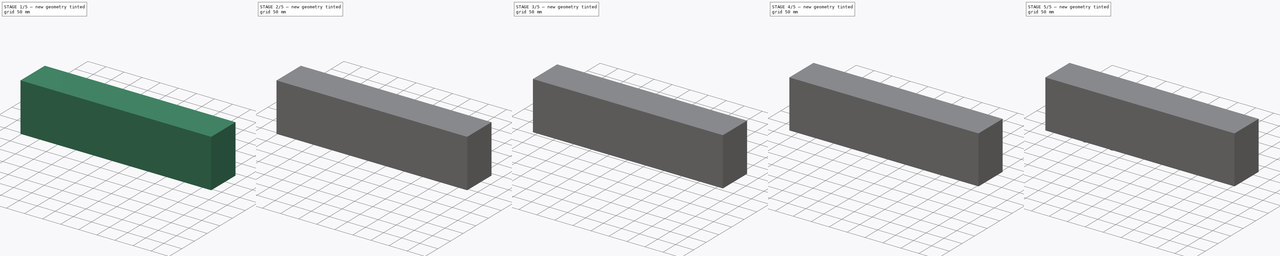
[diagram: build sequence overview — one tinted view per stage of 5, left to right]
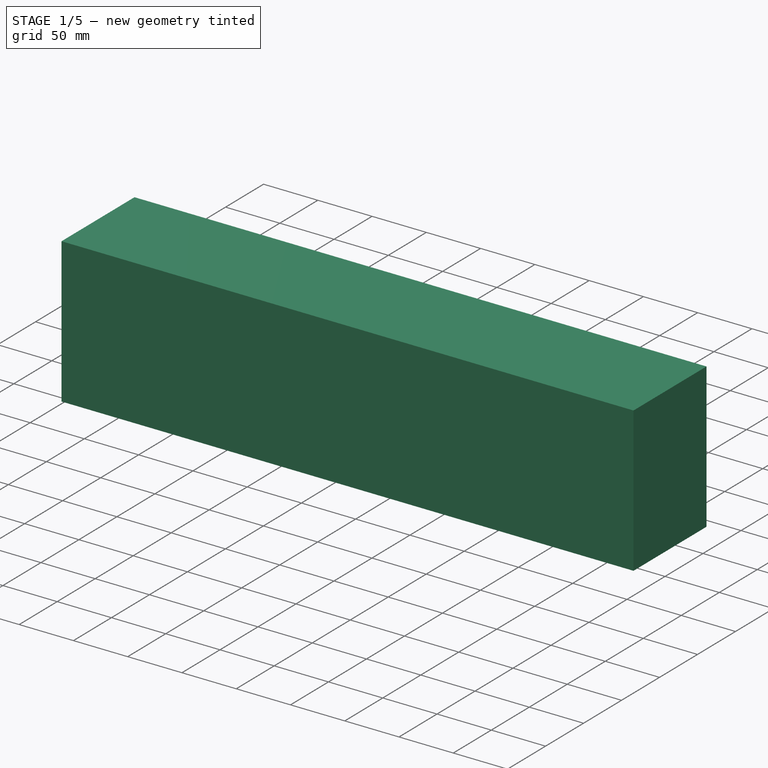
[diagram: stage 1 of 5 — iso view after this stage's code; geometry added in this stage tinted green]
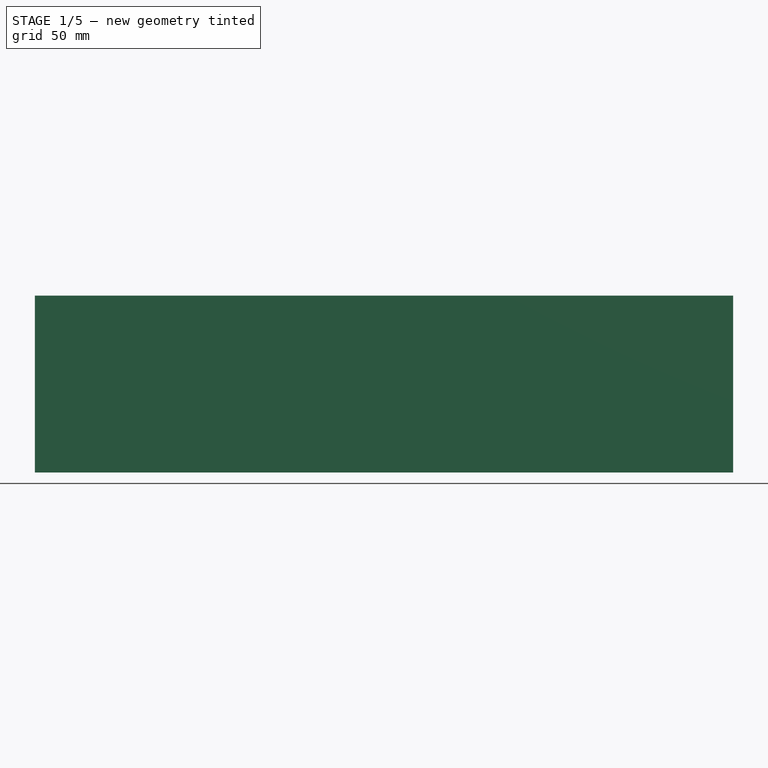
[diagram: stage 1 of 5 — front view after this stage's code; geometry added in this stage tinted green]
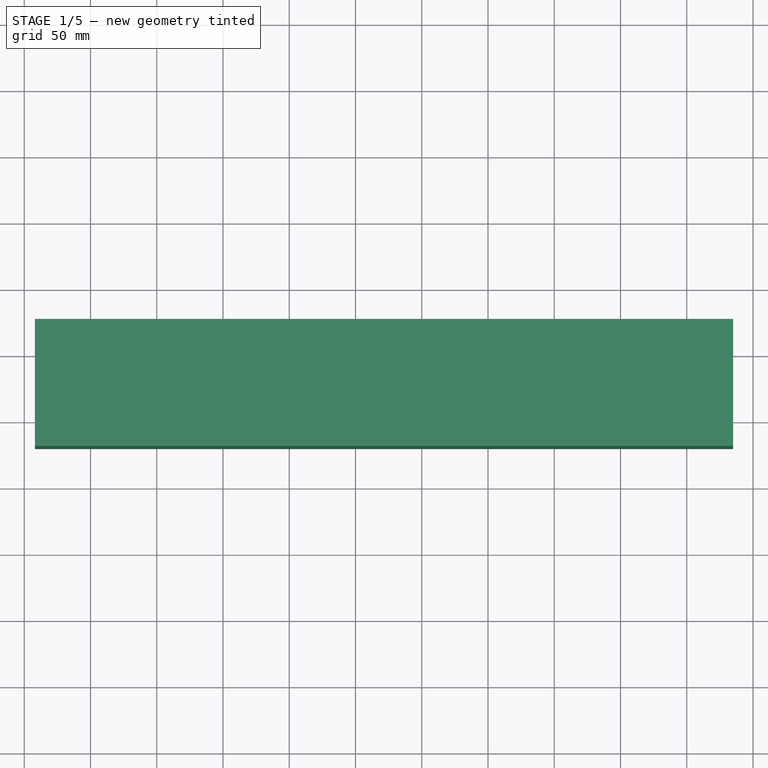
[diagram: stage 1 of 5 — top view after this stage's code; geometry added in this stage tinted green]
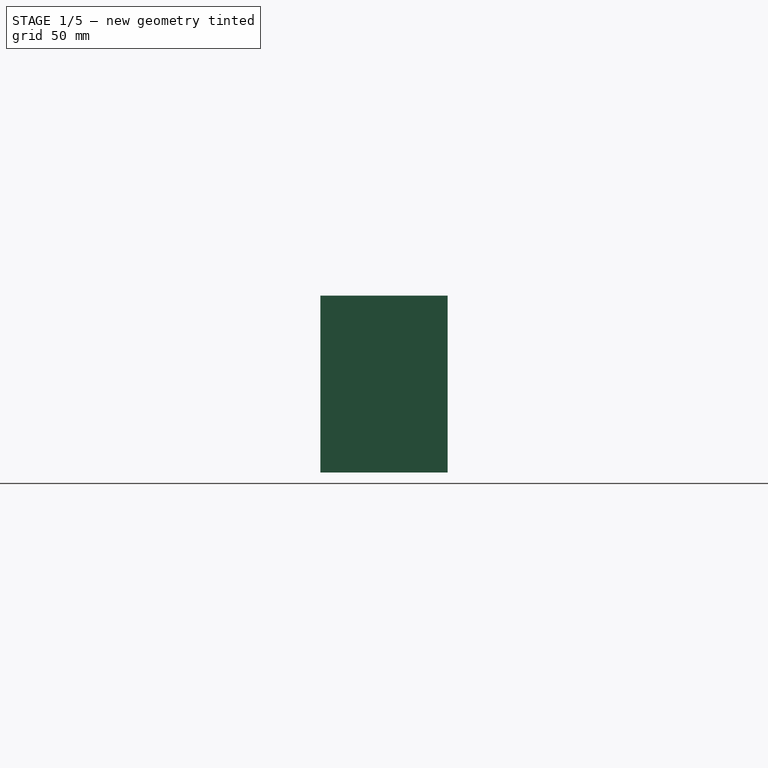
[diagram: stage 1 of 5 — right view after this stage's code; geometry added in this stage tinted green]
FCSTD DOCUMENT  (FreeCAD 0.21R33771 (Git))
Label: Getriebe-5c
License: All rights reserved
LicenseURL: https://en.wikipedia.org/wiki/All_rights_reserved
objects: Part::Cylinder×60, Part::Box×42, Part::Cut×30, Part::MultiFuse×28, Part::FeaturePython×17, Part::Fillet×8, Part::Chamfer×8, Part::Revolution×4, Sketcher::SketchObject×2, Part::Extrusion×2, Part::Feature×1
note: 202 computed .brp shape members not serialized (recipe doc carries the construction recipe); baked Part::Feature solids carry a one-line shape summary decoded from their .brp

FEATURE [Part::FeaturePython] Tube  # WARN: FeaturePython — macro-defined, semantics opaque (R4)
  AttacherType = Attacher::AttachEngine3D
  Height = 6
  InnerRadius = 4.5
  OuterRadius = 6
  Placement = pos=(37,-20,21) rot=(0,0,1;0rad)
FEATURE [Part::Box] Box053  label="Cube053"
  AttacherType = Attacher::AttachEngine3D
  Height = 5
  Length = 86
  Placement = pos=(26,-39,22) rot=(0,0,1;0rad)
  Width = 38
FEATURE [Part::Cylinder] Cylinder114
  Angle = 360
  AttacherType = Attacher::AttachEngine3D
  FirstAngle = 0
  Height = 10
  Placement = pos=(37,-20,21) rot=(0,0,1;0rad)
  Radius = 4.1
  SecondAngle = 0
FEATURE [Part::Box] Box054  label="Cube054"
  AttacherType = Attacher::AttachEngine3D
  Height = 5
  Length = 128
  Placement = pos=(107,-39,7) rot=(1,0,0;1.5708rad)
  Width = 10
FEATURE [Part::Box] Box055  label="Cube055"
  AttacherType = Attacher::AttachEngine3D
  Height = 5
  Length = 128
  Placement = pos=(107,4,7) rot=(1,0,0;1.5708rad)
  Width = 10
FEATURE [Part::Box] Box061  label="Cube061"
  AttacherType = Attacher::AttachEngine3D
  Height = 18
  Length = 4
  Placement = pos=(122,-39,3) rot=(0,0,1;0rad)
  Width = 38
FEATURE [Part::MultiFuse] Fusion092
  Shapes = -> [Box053,Tube]
FEATURE [Part::Cut] Cut073
  Base = -> Fusion092
  Placement = pos=(0,0,6) rot=(0,0,1;0rad)
  Tool = -> Cylinder114
FEATURE [Part::Box] Box070  label="Cube070"
  AttacherType = Attacher::AttachEngine3D
  Height = 12
  Length = 2.5
  Placement = pos=(-13.5,-30.5,0) rot=(0,0,1;0rad)
  Width = 21
FEATURE [Part::Cylinder] Cylinder129
  Angle = 360
  AttacherType = Attacher::AttachEngine3D
  FirstAngle = 0
  Height = 2.5
  Placement = pos=(-11,-20,12) rot=(0,-1,0;1.5708rad)
  Radius = 3.5
  SecondAngle = 0
FEATURE [Part::Cylinder] Cylinder147
  Angle = 360
  AttacherType = Attacher::AttachEngine3D
  FirstAngle = 0
  Height = 4
  Placement = pos=(122,-20,12) rot=(0,1,0;1.5708rad)
  Radius = 7
  SecondAngle = 0
FEATURE [Part::Cut] Cut085
  Base = -> Box061
  Tool = -> Cylinder147
FEATURE [Sketcher::SketchObject] Sketch
  FullyConstrained = false
  Placement = pos=(0,0,0) rot=(1,0,0;1.5708rad)
  sketch-geometry (5):
    g0: LineSegment StartX=132.823 StartY=16.8308 StartZ=0 EndX=111.86 EndY=33.0037 EndZ=0
    g1: LineSegment StartX=111.86 StartY=33.0037 StartZ=0 EndX=91.8596 EndY=33.0037 EndZ=0
    g2: LineSegment StartX=91.8596 StartY=33.0037 StartZ=0 EndX=91.8596 EndY=28.0037 EndZ=0
    g3: LineSegment StartX=91.8596 StartY=28.0037 StartZ=0 EndX=107.162 EndY=16.8308 EndZ=0
    g4: LineSegment StartX=107.162 StartY=16.8308 StartZ=0 EndX=132.823 EndY=16.8308 EndZ=0
  constraints (10):
    c: Coincident(g0,g1)
    c: Horizontal(g1)
    c: Coincident(g1,g2)
    c: Vertical(g2)
    c: Coincident(g2,g3)
    c: Coincident(g3,g4)
    c: Coincident(g4,g0)
    c: Horizontal(g4)
    c: DistanceY(g2,g1) = 5
    c: DistanceX(g1,g0) = 20
FEATURE [Part::Extrusion] Extrude
  Base = -> Sketch
  Dir = (0,-1,-4e-16)
  DirMode = 2
  FaceMakerClass = Part::FaceMakerBullseye
  LengthFwd = 5
  LengthRev = 0
  Placement = pos=(0,4,0) rot=(0,0,1;0rad)
  Solid = true
  Symmetric = false
FEATURE [Part::Extrusion] Extrude001
  Base = -> Sketch
  Dir = (0,-1,-4e-16)
  DirMode = 2
  FaceMakerClass = Part::FaceMakerBullseye
  LengthFwd = 5
  LengthRev = 0
  Placement = pos=(0,-39,0) rot=(0,0,1;0rad)
  Solid = true
  Symmetric = false
FEATURE [Part::Box] Box081  label="Cube081"
  AttacherType = Attacher::AttachEngine3D
  Height = 133.5
  Length = 527
  Placement = pos=(-92,-70,0) rot=(0,0,1;0rad)
  Width = 96
FEATURE [Part::Box] Box082  label="Cube082"
  AttacherType = Attacher::AttachEngine3D
  Height = 2
  Length = 32
  Placement = pos=(21.5,-40,25) rot=(0,0,1;0rad)
  Width = 40
FEATURE [Part::Box] Box083  label="Cube083"
  AttacherType = Attacher::AttachEngine3D
  Height = 2
  Length = 32
  Placement = pos=(21.5,-2,16) rot=(0,0,1;0rad)
  Width = 15
FEATURE [Part::Box] Box084  label="Cube084"
  AttacherType = Attacher::AttachEngine3D
  Height = 2
  Length = 32
  Placement = pos=(21.5,-53,16) rot=(0,0,1;0rad)
  Width = 15
FEATURE [Part::Box] Box085  label="Cube085"
  AttacherType = Attacher::AttachEngine3D
  Height = 2
  Length = 32
  Placement = pos=(21.5,0,18) rot=(1,0,0;1.5708rad)
  Width = 7
FEATURE [Part::Box] Box086  label="Cube086"
  AttacherType = Attacher::AttachEngine3D
  Height = 2
  Length = 32
  Placement = pos=(21.5,-38,18) rot=(1,0,0;1.5708rad)
  Width = 7
FEATURE [Part::Cylinder] Cylinder153
  Angle = 360
  AttacherType = Attacher::AttachEngine3D
  FirstAngle = 0
  Height = 10
  Placement = pos=(37,-20,27) rot=(0,0,1;0rad)
  Radius = 4
  SecondAngle = 0
FEATURE [Part::Cylinder] Cylinder154
  Angle = 360
  AttacherType = Attacher::AttachEngine3D
  FirstAngle = 0
  Height = 3
  Placement = pos=(27.5,-22,7) rot=(0,0,1;0rad)
  Radius = 1.6
  SecondAngle = 0
FEATURE [Part::Cylinder] Cylinder155
  Angle = 360
  AttacherType = Attacher::AttachEngine3D
  FirstAngle = 0
  Height = 3
  Placement = pos=(47.5,-22,7) rot=(0,0,1;0rad)
  Radius = 1.6
  SecondAngle = 0
FEATURE [Part::Cylinder] Cylinder156
  Angle = 360
  AttacherType = Attacher::AttachEngine3D
  FirstAngle = 0
  Height = 3
  Placement = pos=(47.5,-68,7) rot=(0,0,1;0rad)
  Radius = 1.6
  SecondAngle = 0
FEATURE [Part::Cylinder] Cylinder157
  Angle = 360
  AttacherType = Attacher::AttachEngine3D
  FirstAngle = 0
  Height = 3
  Placement = pos=(27.5,-68,7) rot=(0,0,1;0rad)
  Radius = 1.6
  SecondAngle = 0
FEATURE [Part::Cylinder] Cylinder158
  Angle = 360
  AttacherType = Attacher::AttachEngine3D
  FirstAngle = 0
  Height = 3
  Placement = pos=(27,-37,15) rot=(0,0,1;0rad)
  Radius = 1.6
  SecondAngle = 0
FEATURE [Part::Cylinder] Cylinder159
  Angle = 360
  AttacherType = Attacher::AttachEngine3D
  FirstAngle = 0
  Height = 3
  Placement = pos=(27,-53.25,15) rot=(0,0,1;0rad)
  Radius = 1.6
  SecondAngle = 0
FEATURE [Part::MultiFuse] Fusion110
  Placement = pos=(0,25,9) rot=(0,0,1;0rad)
  Shapes = -> [Cylinder154,Cylinder155,Cylinder156,Cylinder157,Cylinder158,Cylinder159]
FEATURE [Part::MultiFuse] Fusion111
  Shapes = -> [Box083,Box085,Box082,Box086,Box084,Cylinder153]
FEATURE [Part::Cut] Cut087  label="Verbindung001"
  Base = -> Fusion111
  Tool = -> Fusion110
FEATURE [Part::Chamfer] Chamfer004
  Base = -> Cut087
  Edges = 2 edges r=1: [Edge23,Edge35]
  Placement = pos=(256.25,0,0) rot=(0,0,1;0rad)
FEATURE [Part::Feature] Part__Feature  label="MOTOR 550"
  Placement = pos=(183,-20,12) rot=(0,1,0;4.71239rad)
  shape: bbox 79.13 x 38.67 x 38.67 mm, 318 faces (baked)
FEATURE [Part::Cylinder] Cylinder148  label="Kardan001"
  Angle = 360
  AttacherType = Attacher::AttachEngine3D
  FirstAngle = 0
  Height = 32
  Placement = pos=(88,-20,12) rot=(0.57735,-0.57735,0.57735;4.18879rad)
  Radius = 6
  SecondAngle = 0
FEATURE [Part::Cylinder] Cylinder160
  Angle = 360
  AttacherType = Attacher::AttachEngine3D
  FirstAngle = 0
  Height = 4
  Placement = pos=(126,0,12) rot=(0,1,0;4.71239rad)
  Radius = 1.7
  SecondAngle = 0
FEATURE [Part::Cylinder] Cylinder161
  Angle = 360
  AttacherType = Attacher::AttachEngine3D
  FirstAngle = 0
  Height = 4
  Placement = pos=(126,25,12) rot=(0,-1,0;1.5708rad)
  Radius = 1.7
  SecondAngle = 0
FEATURE [Part::MultiFuse] Fusion
  Placement = pos=(0,-32.5,0) rot=(0,0,1;0rad)
  Shapes = -> [Cylinder161,Cylinder160]
FEATURE [Part::Cut] Cut088
  Base = -> Cut085
  Tool = -> Fusion
FEATURE [Part::Chamfer] Chamfer005
  Base = -> Cut088
  Edges = 2 edges r=1: [Edge5,Edge6]
FEATURE [Part::Chamfer] Chamfer006
  Base = -> Chamfer005
  Edges = 1 edges r=1: [Edge24]
FEATURE [Part::MultiFuse] Fusion112
  Shapes = -> [Cut073,Extrude,Extrude001,Box054,Box055,Chamfer006]
FEATURE [Part::Chamfer] Chamfer007
  Base = -> Fusion112
  Edges = 2 edges r=3: [Edge44,Edge79]
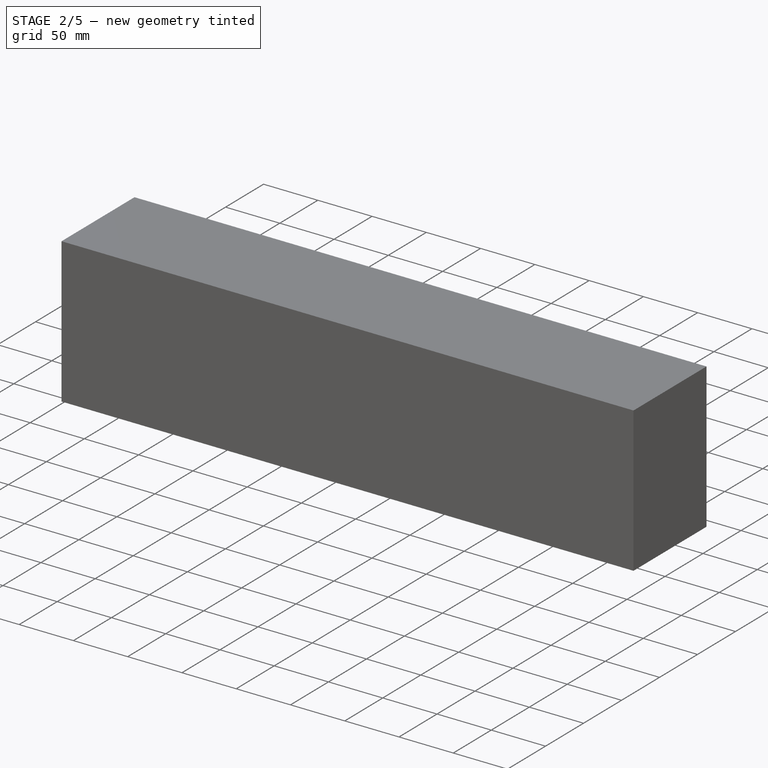
[diagram: stage 2 of 5 — iso view after this stage's code; geometry added in this stage tinted green]
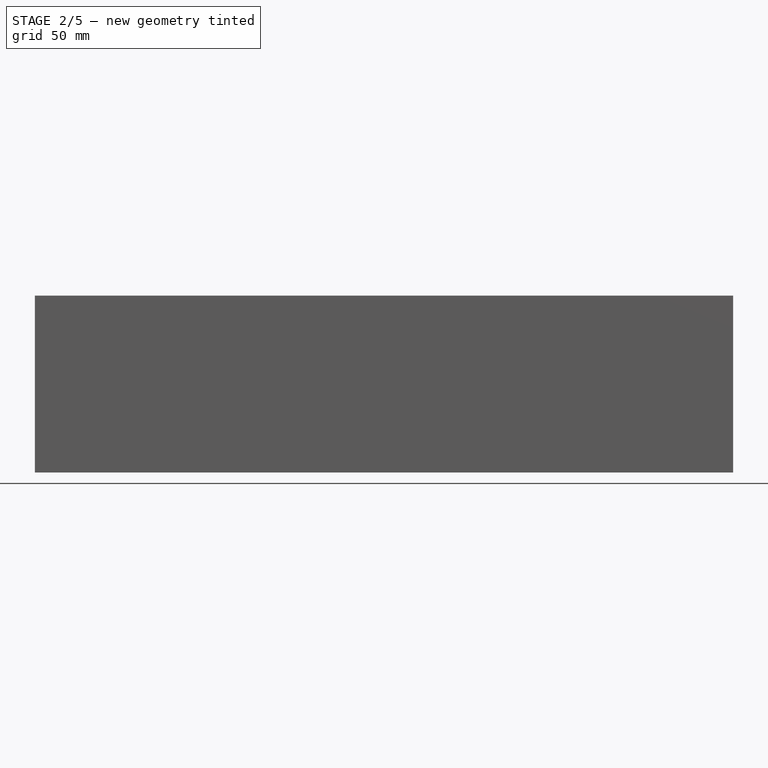
[diagram: stage 2 of 5 — front view after this stage's code; geometry added in this stage tinted green]
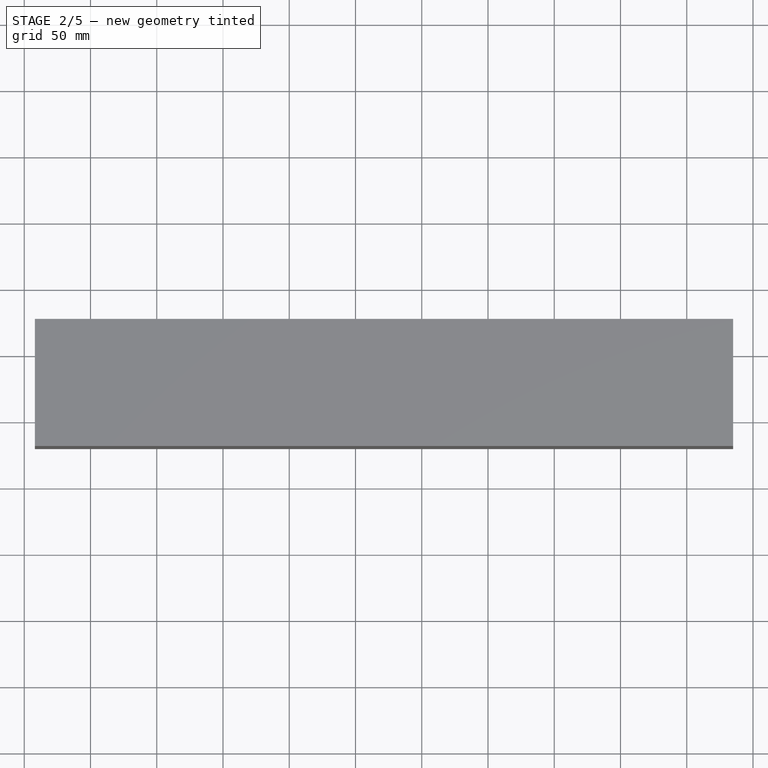
[diagram: stage 2 of 5 — top view after this stage's code; geometry added in this stage tinted green]
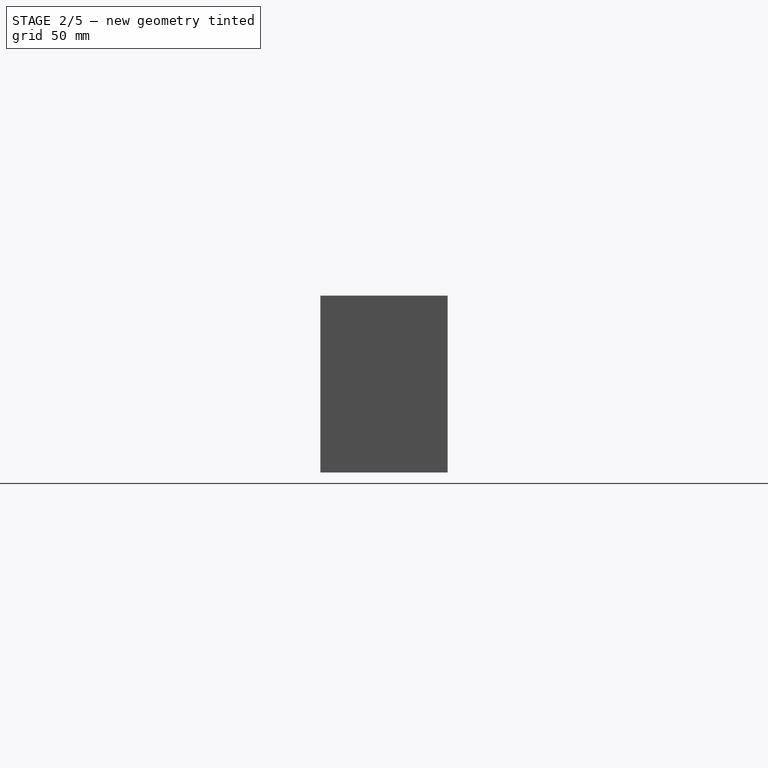
[diagram: stage 2 of 5 — right view after this stage's code; geometry added in this stage tinted green]
FEATURE [Part::Cylinder] Cylinder
  Angle = 360
  AttacherType = Attacher::AttachEngine3D
  FirstAngle = 0
  Height = 10
  Placement = pos=(37,-20,27) rot=(0,0,1;0rad)
  Radius = 4
  SecondAngle = 0
FEATURE [Part::Box] Box014  label="Cube014"
  AttacherType = Attacher::AttachEngine3D
  Height = 2
  Length = 32
  Placement = pos=(21.5,-40,25) rot=(0,0,1;0rad)
  Width = 40
FEATURE [Part::Box] Box018  label="Cube018"
  AttacherType = Attacher::AttachEngine3D
  Height = 12
  Length = 2.5
  Placement = pos=(-13.5,-30.5,0) rot=(0,0,1;0rad)
  Width = 21
FEATURE [Part::Box] Box028  label="Cube028"
  AttacherType = Attacher::AttachEngine3D
  Height = 12
  Length = 29.5
  Placement = pos=(-13.5,-58,0) rot=(0,0,1;0rad)
  Width = 2.5
FEATURE [Part::Cylinder] Cylinder083
  Angle = 360
  AttacherType = Attacher::AttachEngine3D
  FirstAngle = 0
  Height = 2.5
  Placement = pos=(0,-55.5,-1.3e-14) rot=(1,0,0;1.5708rad)
  Radius = 3.5
  SecondAngle = 0
FEATURE [Part::Cut] Cut037
  Base = -> Box028
  Placement = pos=(0,25,0) rot=(0,0,1;0rad)
  Tool = -> Cylinder083
FEATURE [Part::Box] Box034  label="Cube034"
  AttacherType = Attacher::AttachEngine3D
  Height = 12
  Length = 29.5
  Placement = pos=(-13.5,-58,0) rot=(0,0,1;0rad)
  Width = 2.5
FEATURE [Part::Cylinder] Cylinder085
  Angle = 360
  AttacherType = Attacher::AttachEngine3D
  FirstAngle = 0
  Height = 2.5
  Placement = pos=(0,-55.5,-1.3e-14) rot=(1,0,0;1.5708rad)
  Radius = 3.5
  SecondAngle = 0
FEATURE [Part::Cut] Cut039
  Base = -> Box034
  Placement = pos=(0,48.5,0) rot=(0,0,1;0rad)
  Tool = -> Cylinder085
FEATURE [Part::Cylinder] Cylinder086
  Angle = 360
  AttacherType = Attacher::AttachEngine3D
  FirstAngle = 0
  Height = 2.5
  Placement = pos=(-11,-20,12) rot=(0,-1,0;1.5708rad)
  Radius = 3.5
  SecondAngle = 0
FEATURE [Part::Box] Box040  label="Cube040"
  AttacherType = Attacher::AttachEngine3D
  Height = 12
  Length = 4
  Placement = pos=(-11,-39,0) rot=(0,0,1;0rad)
  Width = 4
FEATURE [Part::Fillet] Fillet
  Base = -> Box040
  Edges = 1 edges r=2: [Edge5]
  Placement = pos=(0,25.5,0) rot=(0,0,1;0rad)
FEATURE [Part::Box] Box041  label="Cube041"
  AttacherType = Attacher::AttachEngine3D
  Height = 12
  Length = 4
  Placement = pos=(-11,-39,0) rot=(0,0,1;0rad)
  Width = 4
FEATURE [Part::Fillet] Fillet001
  Base = -> Box041
  Edges = 1 edges r=2: [Edge5]
  Placement = pos=(-46,-19.5,0) rot=(0,0,1;1.5708rad)
FEATURE [Part::Box] Box042  label="Cube042"
  AttacherType = Attacher::AttachEngine3D
  Height = 12
  Length = 4
  Placement = pos=(-11,-39,0) rot=(0,0,1;0rad)
  Width = 4
FEATURE [Part::Fillet] Fillet002
  Base = -> Box042
  Edges = 1 edges r=2: [Edge5]
  Placement = pos=(48.5,-20.5,0) rot=(0,0,-1;1.5708rad)
FEATURE [Part::Box] Box043  label="Cube043"
  AttacherType = Attacher::AttachEngine3D
  Height = 12
  Length = 4
  Placement = pos=(-11,-39,0) rot=(0,0,1;0rad)
  Width = 4
FEATURE [Part::Fillet] Fillet003
  Base = -> Box043
  Edges = 1 edges r=2: [Edge5]
  Placement = pos=(2.5,-65.5,0) rot=(0,0,1;3.14159rad)
FEATURE [Part::Cylinder] Cylinder100
  Angle = 360
  AttacherType = Attacher::AttachEngine3D
  FirstAngle = 0
  Height = 3
  Placement = pos=(27.5,-22,7) rot=(0,0,1;0rad)
  Radius = 1.6
  SecondAngle = 0
FEATURE [Part::Cylinder] Cylinder101
  Angle = 360
  AttacherType = Attacher::AttachEngine3D
  FirstAngle = 0
  Height = 3
  Placement = pos=(47.5,-22,7) rot=(0,0,1;0rad)
  Radius = 1.6
  SecondAngle = 0
FEATURE [Part::Cylinder] Cylinder102
  Angle = 360
  AttacherType = Attacher::AttachEngine3D
  FirstAngle = 0
  Height = 3
  Placement = pos=(47.5,-68,7) rot=(0,0,1;0rad)
  Radius = 1.6
  SecondAngle = 0
FEATURE [Part::Cylinder] Cylinder103
  Angle = 360
  AttacherType = Attacher::AttachEngine3D
  FirstAngle = 0
  Height = 3
  Placement = pos=(27.5,-68,7) rot=(0,0,1;0rad)
  Radius = 1.6
  SecondAngle = 0
FEATURE [Part::Cut] Cut075
  Base = -> Box018
  Placement = pos=(27,0,0) rot=(0,0,1;0rad)
  Tool = -> Cylinder086
FEATURE [Part::Cut] Cut077
  Base = -> Box070
  Tool = -> Cylinder129
FEATURE [Part::Cylinder] Cylinder135
  Angle = 360
  AttacherType = Attacher::AttachEngine3D
  FirstAngle = 0
  Height = 16
  Placement = pos=(-10,-10.5,0) rot=(0,0,1;0rad)
  Radius = 1.7
  SecondAngle = 0
FEATURE [Part::Cylinder] Cylinder136
  Angle = 360
  AttacherType = Attacher::AttachEngine3D
  FirstAngle = 0
  Height = 16
  Placement = pos=(-10,-29.5,0) rot=(0,0,1;0rad)
  Radius = 1.7
  SecondAngle = 0
FEATURE [Part::Cylinder] Cylinder137
  Angle = 360
  AttacherType = Attacher::AttachEngine3D
  FirstAngle = 0
  Height = 16
  Placement = pos=(12.5,-10.5,0) rot=(0,0,1;0rad)
  Radius = 1.7
  SecondAngle = 0
FEATURE [Part::Cylinder] Cylinder138
  Angle = 360
  AttacherType = Attacher::AttachEngine3D
  FirstAngle = 0
  Height = 16
  Placement = pos=(12.5,-29.5,0) rot=(0,0,1;0rad)
  Radius = 1.7
  SecondAngle = 0
FEATURE [Part::Cylinder] Cylinder145
  Angle = 360
  AttacherType = Attacher::AttachEngine3D
  FirstAngle = 0
  Height = 3
  Placement = pos=(27,-37,15) rot=(0,0,1;0rad)
  Radius = 1.6
  SecondAngle = 0
FEATURE [Part::Cylinder] Cylinder146
  Angle = 360
  AttacherType = Attacher::AttachEngine3D
  FirstAngle = 0
  Height = 3
  Placement = pos=(27,-53.25,15) rot=(0,0,1;0rad)
  Radius = 1.6
  SecondAngle = 0
FEATURE [Part::MultiFuse] Fusion046
  Placement = pos=(0,25,9) rot=(0,0,1;0rad)
  Shapes = -> [Cylinder100,Cylinder101,Cylinder102,Cylinder103,Cylinder145,Cylinder146]
FEATURE [Part::Box] Box077  label="Cube077"
  AttacherType = Attacher::AttachEngine3D
  Height = 2
  Length = 32
  Placement = pos=(21.5,-2,16) rot=(0,0,1;0rad)
  Width = 15
FEATURE [Part::Box] Box078  label="Cube078"
  AttacherType = Attacher::AttachEngine3D
  Height = 2
  Length = 32
  Placement = pos=(21.5,-53,16) rot=(0,0,1;0rad)
  Width = 15
FEATURE [Part::Box] Box079  label="Cube079"
  AttacherType = Attacher::AttachEngine3D
  Height = 2
  Length = 32
  Placement = pos=(21.5,0,18) rot=(1,0,0;1.5708rad)
  Width = 7
FEATURE [Part::Box] Box080  label="Cube080"
  AttacherType = Attacher::AttachEngine3D
  Height = 2
  Length = 32
  Placement = pos=(21.5,-38,18) rot=(1,0,0;1.5708rad)
  Width = 7
FEATURE [Part::MultiFuse] Fusion105
  Shapes = -> [Box077,Box079,Box014,Box080,Box078,Cylinder]
FEATURE [Part::MultiFuse] Fusion099
  Shapes = -> [Cylinder138,Cylinder135,Cylinder136,Cylinder137]
FEATURE [Part::MultiFuse] Fusion106
  Shapes = -> [Cut077,Cut037,Cut039,Cut075,Fillet002,Fillet,Fillet001,Fillet003]
FEATURE [Part::Cut] Cut084
  Base = -> Fusion106
  Tool = -> Fusion099
FEATURE [Part::Fillet] Fillet008
  Base = -> Cut084
  Edges = 4 edges r=2: [Edge19,Edge28,Edge68,Edge85]
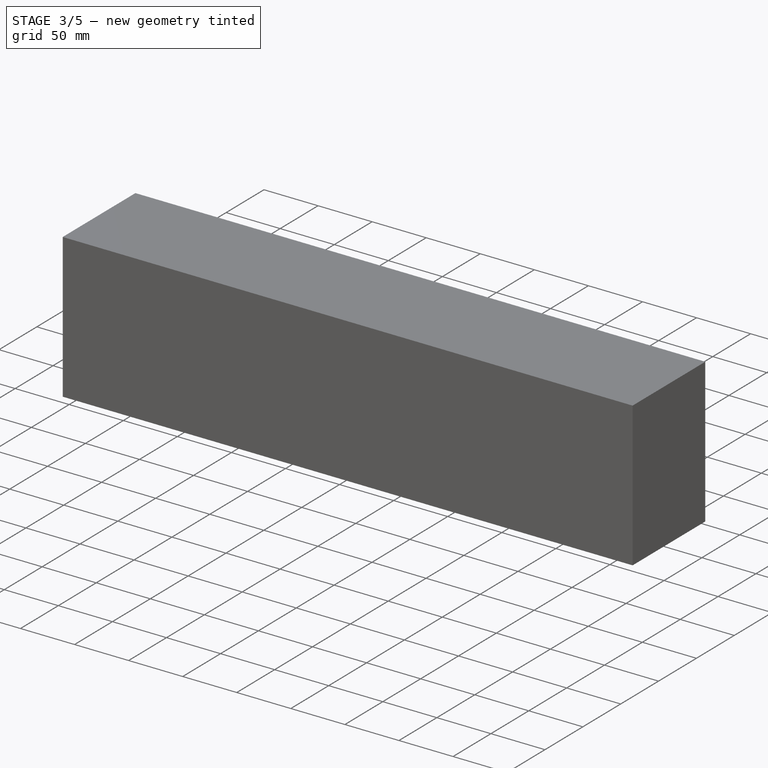
[diagram: stage 3 of 5 — iso view after this stage's code; geometry added in this stage tinted green]
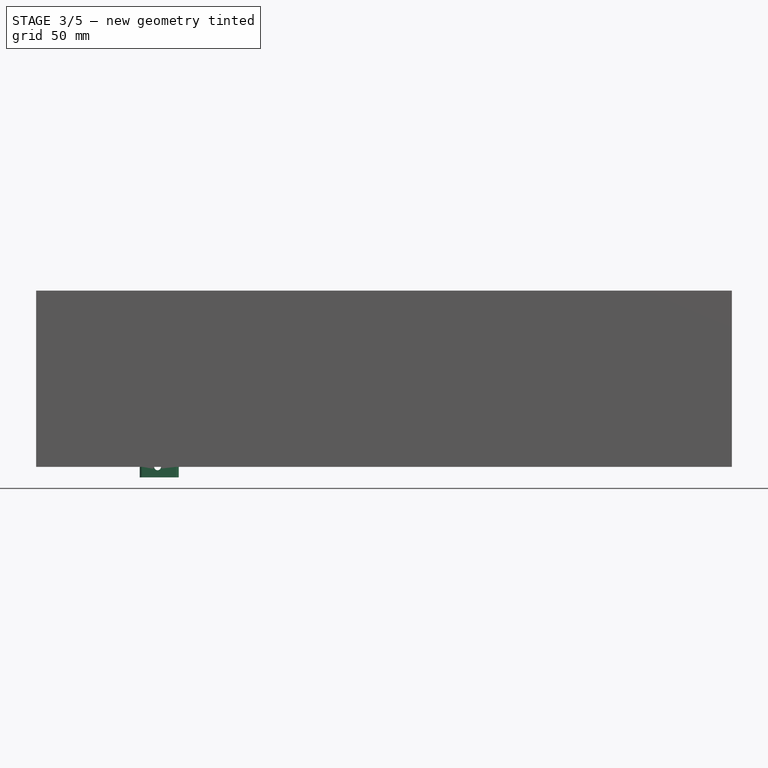
[diagram: stage 3 of 5 — front view after this stage's code; geometry added in this stage tinted green]
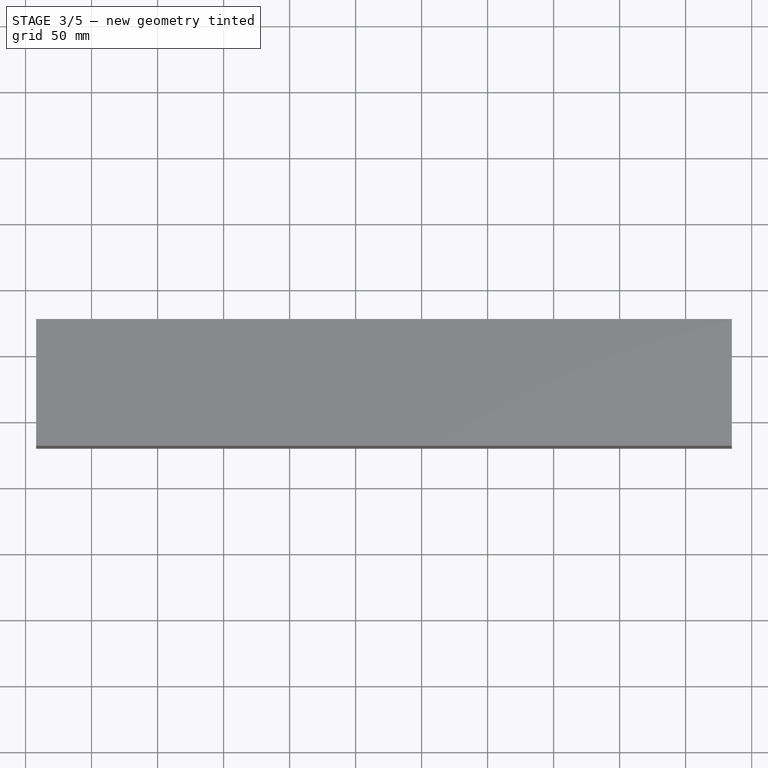
[diagram: stage 3 of 5 — top view after this stage's code; geometry added in this stage tinted green]
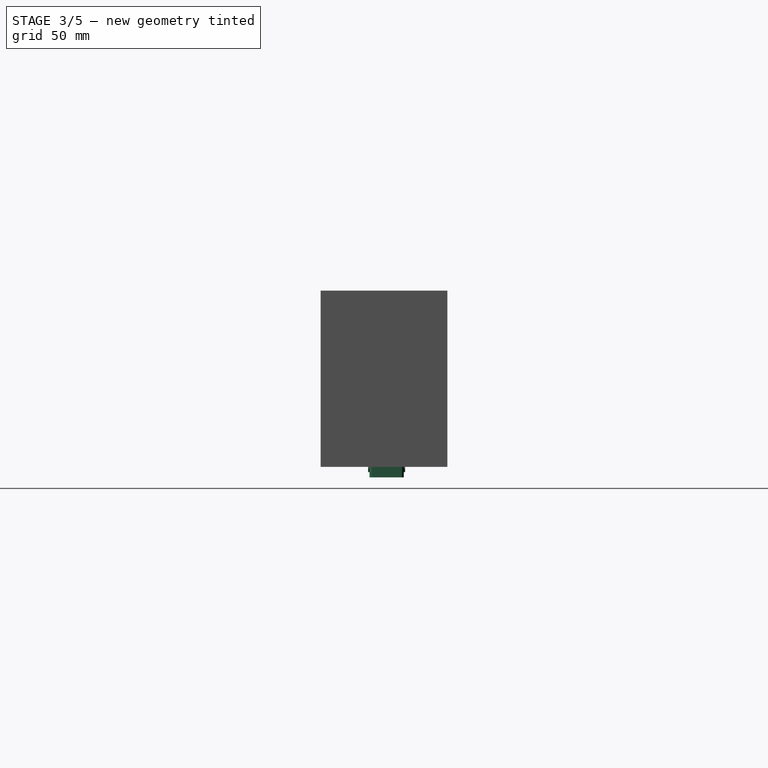
[diagram: stage 3 of 5 — right view after this stage's code; geometry added in this stage tinted green]
FEATURE [Part::Box] Box021  label="Cube021"
  AttacherType = Attacher::AttachEngine3D
  Height = 6
  Length = 29.5
  Placement = pos=(-13.5,-58,-6) rot=(0,0,1;0rad)
  Width = 2.5
FEATURE [Part::Box] Box022  label="Cube022"
  AttacherType = Attacher::AttachEngine3D
  Height = 2
  Length = 29.5
  Placement = pos=(-13.5,-58.5,-8) rot=(0,0,1;0rad)
  Width = 26
FEATURE [Part::Box] Box029  label="Cube029"
  AttacherType = Attacher::AttachEngine3D
  Height = 6
  Length = 2.5
  Placement = pos=(-13.5,-56,-6) rot=(0,0,1;0rad)
  Width = 21
FEATURE [Part::Cylinder] Cylinder082
  Angle = 360
  AttacherType = Attacher::AttachEngine3D
  FirstAngle = 0
  Height = 2.5
  Placement = pos=(0,-55.5,-1.3e-14) rot=(1,0,0;1.5708rad)
  Radius = 3.5
  SecondAngle = 0
FEATURE [Part::Cut] Cut036
  Base = -> Box021
  Placement = pos=(0,-0.5,0) rot=(0,0,1;0rad)
  Tool = -> Cylinder082
FEATURE [Part::Box] Box033  label="Cube033"
  AttacherType = Attacher::AttachEngine3D
  Height = 6
  Length = 29.5
  Placement = pos=(-13.5,-58,-6) rot=(0,0,1;0rad)
  Width = 2.5
FEATURE [Part::Cylinder] Cylinder084
  Angle = 360
  AttacherType = Attacher::AttachEngine3D
  FirstAngle = 0
  Height = 2.5
  Placement = pos=(0,-55.5,-1.3e-14) rot=(1,0,0;1.5708rad)
  Radius = 3.5
  SecondAngle = 0
FEATURE [Part::Cut] Cut038
  Base = -> Box033
  Placement = pos=(0,23,0) rot=(0,0,1;0rad)
  Tool = -> Cylinder084
FEATURE [Part::Box] Box036  label="Cube036"
  AttacherType = Attacher::AttachEngine3D
  Height = 6
  Length = 2.5
  Placement = pos=(13.5,-56,-6) rot=(0,0,1;0rad)
  Width = 21
FEATURE [Part::Cylinder] Cylinder092
  Angle = 360
  AttacherType = Attacher::AttachEngine3D
  FirstAngle = 0
  Height = 8
  Placement = pos=(-10,-36,0) rot=(0,0,1;0rad)
  Radius = 1.6
  SecondAngle = 0
FEATURE [Part::Cylinder] Cylinder093
  Angle = 360
  AttacherType = Attacher::AttachEngine3D
  FirstAngle = 0
  Height = 8
  Placement = pos=(-10,-55,0) rot=(0,0,1;0rad)
  Radius = 1.6
  SecondAngle = 0
FEATURE [Part::Cylinder] Cylinder094
  Angle = 360
  AttacherType = Attacher::AttachEngine3D
  FirstAngle = 0
  Height = 8
  Placement = pos=(12.5,-36,0) rot=(0,0,1;0rad)
  Radius = 1.6
  SecondAngle = 0
FEATURE [Part::Cylinder] Cylinder095
  Angle = 360
  AttacherType = Attacher::AttachEngine3D
  FirstAngle = 0
  Height = 8
  Placement = pos=(12.5,-55,0) rot=(0,0,1;0rad)
  Radius = 1.6
  SecondAngle = 0
FEATURE [Part::Box] Box051  label="Cube051"
  AttacherType = Attacher::AttachEngine3D
  Height = 2
  Length = 17
  Placement = pos=(-8.5,-49,-8) rot=(0,0,1;0rad)
  Width = 8
FEATURE [Part::MultiFuse] Fusion058
  Placement = pos=(0,0,-8) rot=(0,0,1;0rad)
  Shapes = -> [Cylinder092,Cylinder093,Cylinder094,Cylinder095]
FEATURE [Part::MultiFuse] Fusion059
  Shapes = -> [Fusion058,Box051]
FEATURE [Part::MultiFuse] Fusion062
  Shapes = -> [Box036,Cut038,Cut036,Box022,Box029]
FEATURE [Part::Cut] Cut056
  Base = -> Fusion062
  Placement = pos=(0,25.5,0) rot=(0,0,1;0rad)
  Tool = -> Fusion059
FEATURE [Part::FeaturePython] Tube016  # WARN: FeaturePython — macro-defined, semantics opaque (R4)
  AttacherType = Attacher::AttachEngine3D
  Height = 1
  InnerRadius = 2.6
  OuterRadius = 4
  Placement = pos=(0,-6,0) rot=(1,0,0;1.5708rad)
FEATURE [Part::FeaturePython] Tube019  # WARN: FeaturePython — macro-defined, semantics opaque (R4)
  AttacherType = Attacher::AttachEngine3D
  Height = 1
  InnerRadius = 2.6
  OuterRadius = 4
  Placement = pos=(0,-33,0) rot=(1,0,0;1.5708rad)
FEATURE [Part::Box] Box  label="Cube"
  AttacherType = Attacher::AttachEngine3D
  Height = 4
  Length = 8
  Placement = pos=(-4,-7,0) rot=(0,0,1;0rad)
  Width = 1
FEATURE [Part::Box] Box067  label="Cube067"
  AttacherType = Attacher::AttachEngine3D
  Height = 4
  Length = 8
  Placement = pos=(-4,-34,0) rot=(0,0,1;0rad)
  Width = 1
FEATURE [Part::Cut] Cut068
  Base = -> Tube016
  Tool = -> Box
FEATURE [Part::Cut] Cut071
  Base = -> Tube019
  Tool = -> Box067
FEATURE [Part::MultiFuse] Fusion084  label="G-unten"
  Shapes = -> [Cut056,Cut068,Cut071]
FEATURE [Part::Box] Box075  label="Cube075"
  AttacherType = Attacher::AttachEngine3D
  Height = 7
  Length = 46
  Placement = pos=(-13.5,-33,16) rot=(0,0,1;0rad)
  Width = 2.5
FEATURE [Part::Box] Box076  label="Cube076"
  AttacherType = Attacher::AttachEngine3D
  Height = 2
  Length = 46
  Placement = pos=(-13.5,-33,23) rot=(0,0,1;0rad)
  Width = 26
FEATURE [Part::Cylinder] Cylinder131
  Angle = 360
  AttacherType = Attacher::AttachEngine3D
  FirstAngle = 0
  Height = 10
  Placement = pos=(-10,-10.5,15) rot=(0,0,1;0rad)
  Radius = 1.6
  SecondAngle = 0
FEATURE [Part::Cylinder] Cylinder132
  Angle = 360
  AttacherType = Attacher::AttachEngine3D
  FirstAngle = 0
  Height = 10
  Placement = pos=(-10,-29.5,15) rot=(0,0,1;0rad)
  Radius = 1.6
  SecondAngle = 0
FEATURE [Part::Cylinder] Cylinder133
  Angle = 360
  AttacherType = Attacher::AttachEngine3D
  FirstAngle = 0
  Height = 10
  Placement = pos=(12.5,-10.5,15) rot=(0,0,1;0rad)
  Radius = 1.6
  SecondAngle = 0
FEATURE [Part::Cylinder] Cylinder134
  Angle = 360
  AttacherType = Attacher::AttachEngine3D
  FirstAngle = 0
  Height = 10
  Placement = pos=(12.5,-29.5,15) rot=(0,0,1;0rad)
  Radius = 1.6
  SecondAngle = 0
FEATURE [Part::MultiFuse] Fusion098
  Shapes = -> [Cylinder134,Cylinder131,Cylinder132,Cylinder133]
FEATURE [Part::Cylinder] Cylinder143
  Angle = 360
  AttacherType = Attacher::AttachEngine3D
  FirstAngle = 0
  Height = 3
  Placement = pos=(27,-12,23) rot=(0,0,1;0rad)
  Radius = 1.6
  SecondAngle = 0
FEATURE [Part::Cylinder] Cylinder144
  Angle = 360
  AttacherType = Attacher::AttachEngine3D
  FirstAngle = 0
  Height = 3
  Placement = pos=(27,-28,23) rot=(0,0,1;0rad)
  Radius = 1.6
  SecondAngle = 0
FEATURE [Part::MultiFuse] Fusion102
  Shapes = -> [Cylinder143,Cylinder144]
FEATURE [Part::Fillet] Fillet006
  Base = -> Fusion084
  Edges = 2 edges r=2: [Edge82,Edge97]
FEATURE [Part::Fillet] Fillet007
  Base = -> Fillet006
  Edges = 2 edges r=2: [Edge81,Edge85]
FEATURE [Part::Cut] Cut083  label="Verbindung"
  Base = -> Fusion105
  Tool = -> Fusion046
FEATURE [Part::Chamfer] Chamfer003
  Base = -> Cut083
  Edges = 2 edges r=1: [Edge23,Edge35]
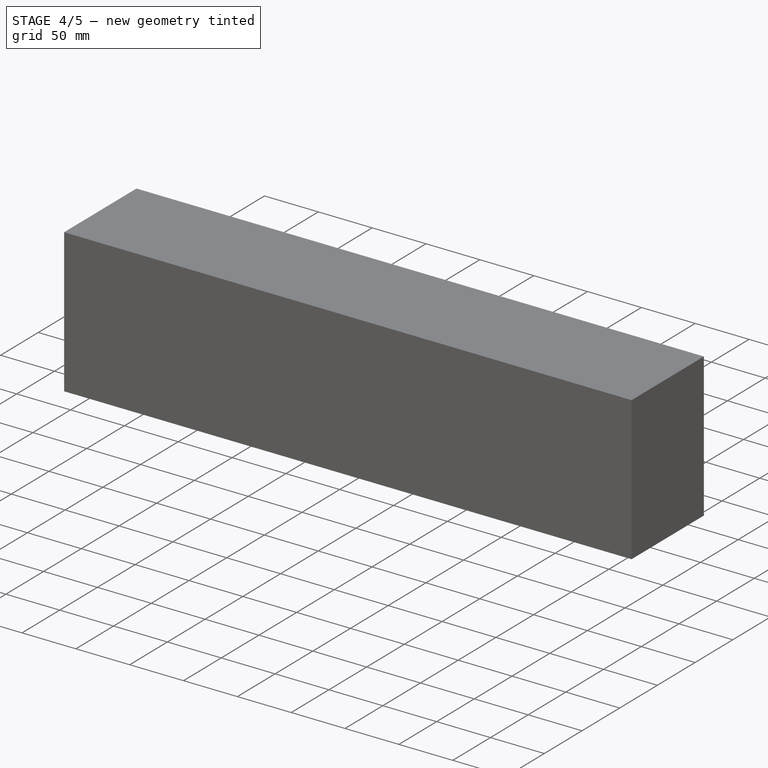
[diagram: stage 4 of 5 — iso view after this stage's code; geometry added in this stage tinted green]
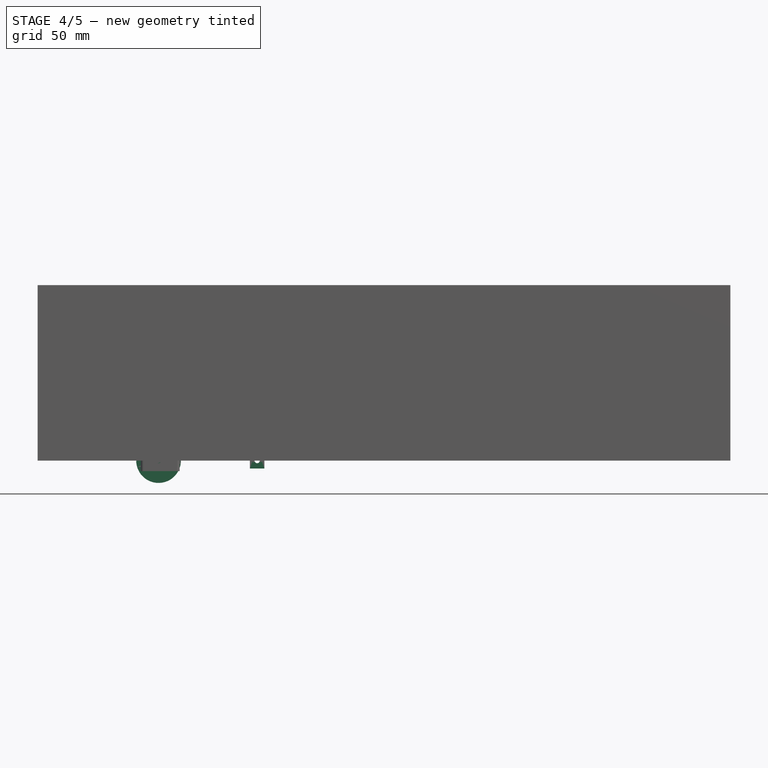
[diagram: stage 4 of 5 — front view after this stage's code; geometry added in this stage tinted green]
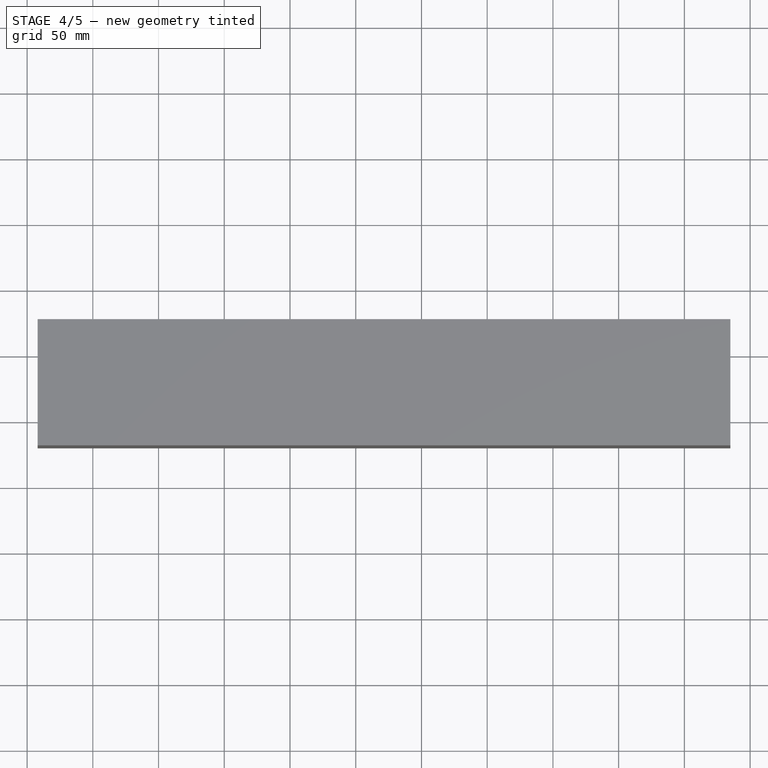
[diagram: stage 4 of 5 — top view after this stage's code; geometry added in this stage tinted green]
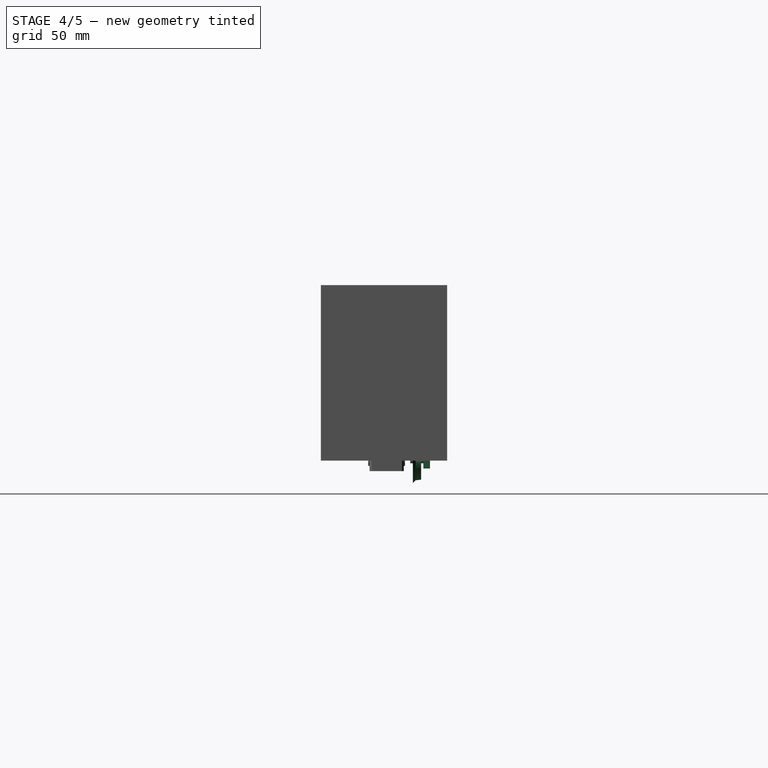
[diagram: stage 4 of 5 — right view after this stage's code; geometry added in this stage tinted green]
FEATURE [Part::Box] Box050  label="Cube050"
  AttacherType = Attacher::AttachEngine3D
  Height = 4
  Length = 32
  Placement = pos=(22,-73,13) rot=(0,0,1;0rad)
  Width = 10
FEATURE [Part::Cylinder] Cylinder107
  Angle = 360
  AttacherType = Attacher::AttachEngine3D
  FirstAngle = 0
  Height = 7
  Placement = pos=(48,-68,7) rot=(0,0,1;0rad)
  Radius = 2
  SecondAngle = 0
FEATURE [Part::Cylinder] Cylinder108
  Angle = 360
  AttacherType = Attacher::AttachEngine3D
  FirstAngle = 0
  Height = 7
  Placement = pos=(28,-68,7) rot=(0,0,1;0rad)
  Radius = 2
  SecondAngle = 0
FEATURE [Part::MultiFuse] Fusion053
  Placement = pos=(0,0,3) rot=(0,0,1;0rad)
  Shapes = -> [Cylinder107,Cylinder108]
FEATURE [Part::Cut] Cut050
  Base = -> Box050
  Placement = pos=(-0.5,71,-1) rot=(0,0,1;0rad)
  Tool = -> Fusion053
FEATURE [Part::Cylinder] Cylinder119
  Angle = 360
  AttacherType = Attacher::AttachEngine3D
  FirstAngle = 0
  Height = 10
  Placement = pos=(0,8,0) rot=(1,0,0;1.5708rad)
  Radius = 2
  SecondAngle = 0
FEATURE [Part::Revolution] Revolve006
  Angle = 360
  Axis = (0,-1,0)
  AxisLink = -> Sketch005 [Edge9]
  Base = (0,0,0)
  FaceMakerClass = Part::FaceMakerBullseye
  Solid = true
  Source = -> Sketch005
  Symmetric = false
FEATURE [Part::FeaturePython] Tube014  # WARN: FeaturePython — macro-defined, semantics opaque (R4)
  AttacherType = Attacher::AttachEngine3D
  Height = 2.5
  InnerRadius = 2
  OuterRadius = 3.6
  Placement = pos=(0,13,3e-15) rot=(1,0,0;1.5708rad)
FEATURE [Part::FeaturePython] Tube015  # WARN: FeaturePython — macro-defined, semantics opaque (R4)
  AttacherType = Attacher::AttachEngine3D
  Height = 2.5
  InnerRadius = 2
  OuterRadius = 3.6
  Placement = pos=(75,13,3e-15) rot=(1,0,0;1.5708rad)
FEATURE [Part::Box] Box062  label="Cube062"
  AttacherType = Attacher::AttachEngine3D
  Height = 86
  Length = 5
  Placement = pos=(-5.5,8,8) rot=(0.57735,0.57735,0.57735;2.0944rad)
  Width = 8
FEATURE [Part::Box] Box063  label="Cube063"
  AttacherType = Attacher::AttachEngine3D
  Height = 14
  Length = 11
  Placement = pos=(-5.5,-78,-6) rot=(0,0,1;0rad)
  Width = 5
FEATURE [Part::Cylinder] Cylinder120
  Angle = 360
  AttacherType = Attacher::AttachEngine3D
  FirstAngle = 0
  Height = 5
  Placement = pos=(0,-73,0) rot=(0.57735,0.57735,-0.57735;2.0944rad)
  Radius = 3.6
  SecondAngle = 0
FEATURE [Part::Cut] Cut065
  Base = -> Box063
  Placement = pos=(0,86,0) rot=(0,0,1;0rad)
  Tool = -> Cylinder120
FEATURE [Part::Box] Box064  label="Cube064"
  AttacherType = Attacher::AttachEngine3D
  Height = 14
  Length = 11
  Placement = pos=(69.5,-78,-6) rot=(0,0,1;0rad)
  Width = 5
FEATURE [Part::Cylinder] Cylinder121
  Angle = 360
  AttacherType = Attacher::AttachEngine3D
  FirstAngle = 0
  Height = 5
  Placement = pos=(75,-73,0) rot=(0.57735,0.57735,-0.57735;2.0944rad)
  Radius = 3.6
  SecondAngle = 0
FEATURE [Part::Cut] Cut066
  Base = -> Box064
  Placement = pos=(0,86,0) rot=(0,0,1;0rad)
  Tool = -> Cylinder121
FEATURE [Part::Cylinder] Cylinder122  label="Kardan"
  Angle = 360
  AttacherType = Attacher::AttachEngine3D
  FirstAngle = 0
  Height = 32
  Placement = pos=(22,-20,12) rot=(0.57735,-0.57735,0.57735;4.18879rad)
  Radius = 6
  SecondAngle = 0
FEATURE [Part::Box] Box069  label="Cube069"
  AttacherType = Attacher::AttachEngine3D
  Height = 7
  Length = 2.5
  Placement = pos=(-13.5,-30.5,16) rot=(0,0,1;0rad)
  Width = 21
FEATURE [Part::Cylinder] Cylinder128
  Angle = 360
  AttacherType = Attacher::AttachEngine3D
  FirstAngle = 0
  Height = 2.5
  Placement = pos=(-11,-20,16) rot=(0,-1,0;1.5708rad)
  Radius = 3.5
  SecondAngle = 0
FEATURE [Part::Cut] Cut076
  Base = -> Box069
  Tool = -> Cylinder128
FEATURE [Part::Box] Box071  label="Cube071"
  AttacherType = Attacher::AttachEngine3D
  Height = 7
  Length = 2.5
  Placement = pos=(-13.5,-30.5,16) rot=(0,0,1;0rad)
  Width = 21
FEATURE [Part::Cylinder] Cylinder130
  Angle = 360
  AttacherType = Attacher::AttachEngine3D
  FirstAngle = 0
  Height = 2.5
  Placement = pos=(-11,-20,16) rot=(0,-1,0;1.5708rad)
  Radius = 3.5
  SecondAngle = 0
FEATURE [Part::Cut] Cut078
  Base = -> Box071
  Placement = pos=(27,0,0) rot=(0,0,1;0rad)
  Tool = -> Cylinder130
FEATURE [Part::FeaturePython] Tube020  # WARN: FeaturePython — macro-defined, semantics opaque (R4)
  AttacherType = Attacher::AttachEngine3D
  Height = 1
  InnerRadius = 2.6
  OuterRadius = 4
  Placement = pos=(-13.5,-20,16) rot=(0,1,0;1.5708rad)
FEATURE [Part::Box] Box072  label="Cube072"
  AttacherType = Attacher::AttachEngine3D
  Height = 5
  Length = 1
  Placement = pos=(-13.5,-25,11) rot=(0,0,1;0rad)
  Width = 10
FEATURE [Part::Cut] Cut079
  Base = -> Tube020
  Placement = pos=(-1,0,0) rot=(0,0,1;0rad)
  Tool = -> Box072
FEATURE [Part::Box] Box073  label="Cube073"
  AttacherType = Attacher::AttachEngine3D
  Height = 5
  Length = 1
  Placement = pos=(-13.5,-25,11) rot=(0,0,1;0rad)
  Width = 10
FEATURE [Part::FeaturePython] Tube021  # WARN: FeaturePython — macro-defined, semantics opaque (R4)
  AttacherType = Attacher::AttachEngine3D
  Height = 1
  InnerRadius = 2.6
  OuterRadius = 4
  Placement = pos=(-13.5,-20,16) rot=(0,1,0;1.5708rad)
FEATURE [Part::Cut] Cut080
  Base = -> Tube021
  Placement = pos=(29.5,0,0) rot=(0,0,1;0rad)
  Tool = -> Box073
FEATURE [Part::MultiFuse] Fusion095
  Shapes = -> [Cut076,Cut079]
FEATURE [Part::MultiFuse] Fusion096
  Shapes = -> [Cut078,Cut080]
FEATURE [Part::Box] Box074  label="Cube074"
  AttacherType = Attacher::AttachEngine3D
  Height = 7
  Length = 46
  Placement = pos=(-13.5,-9.5,16) rot=(0,0,1;0rad)
  Width = 2.5
FEATURE [Part::MultiFuse] Fusion097
  Shapes = -> [Box076,Box075,Box074,Fusion096,Fusion095]
FEATURE [Part::Cut] Cut081
  Base = -> Fusion097
  Tool = -> Fusion098
FEATURE [Part::Chamfer] Chamfer  label="oben"
  Base = -> Cut081
  Edges = 2 edges r=5: [Edge66,Edge77]
FEATURE [Part::Cut] Cut
  Base = -> Chamfer
  Tool = -> Fusion102
FEATURE [Part::Chamfer] Chamfer001  label="G-oben"
  Base = -> Cut
  Edges = 2 edges r=0.9: [Edge69,Edge70]
FEATURE [Part::MultiFuse] Fusion104
  Shapes = -> [Cut050,Box062,Cut066,Cut065,Tube014,Tube015]
FEATURE [Part::Chamfer] Chamfer002
  Base = -> Fusion104
  Edges = 2 edges r=3: [Edge15,Edge17]
FEATURE [Part::Fillet] Fillet004
  Base = -> Chamfer001
  Edges = 2 edges r=2: [Edge96,Edge118]
  Placement = pos=(0,0,-4) rot=(0,0,1;0rad)
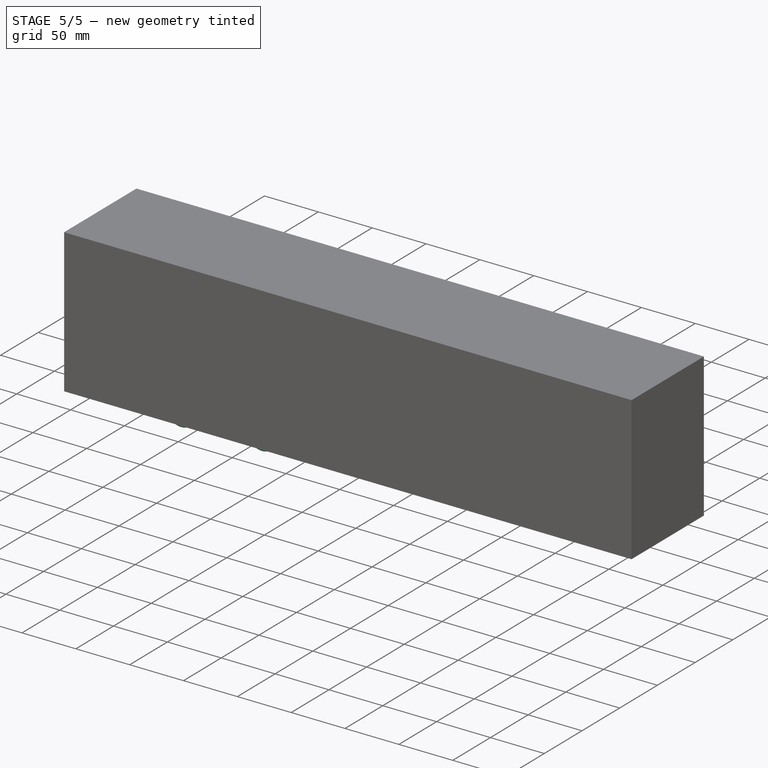
[diagram: stage 5 of 5 — iso view after this stage's code; geometry added in this stage tinted green]
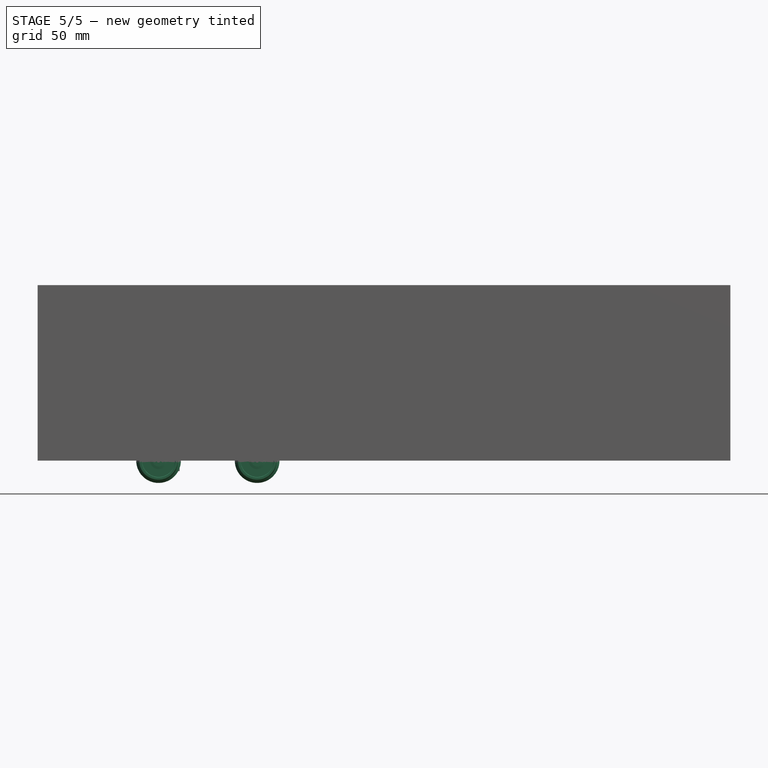
[diagram: stage 5 of 5 — front view after this stage's code; geometry added in this stage tinted green]
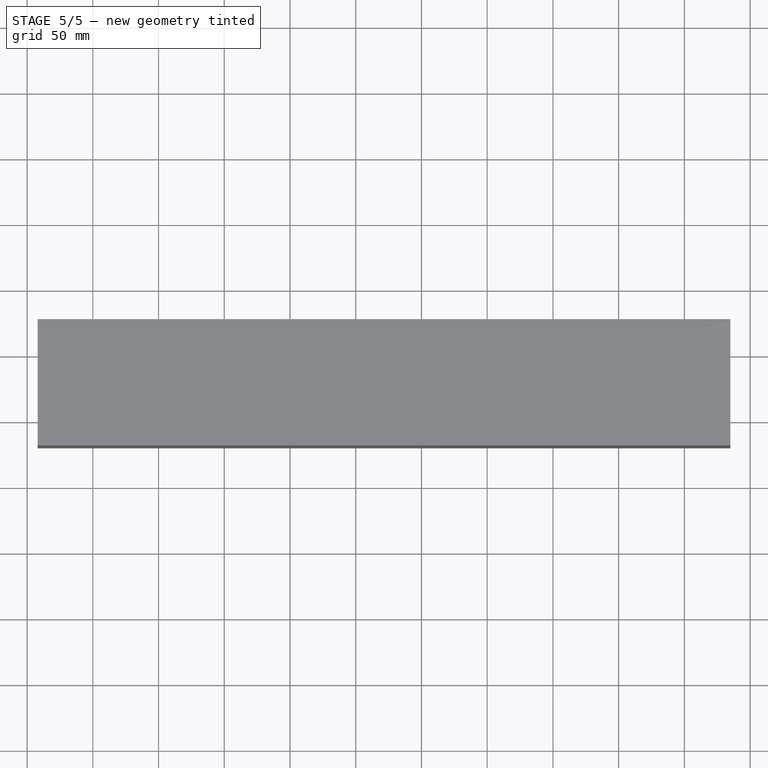
[diagram: stage 5 of 5 — top view after this stage's code; geometry added in this stage tinted green]
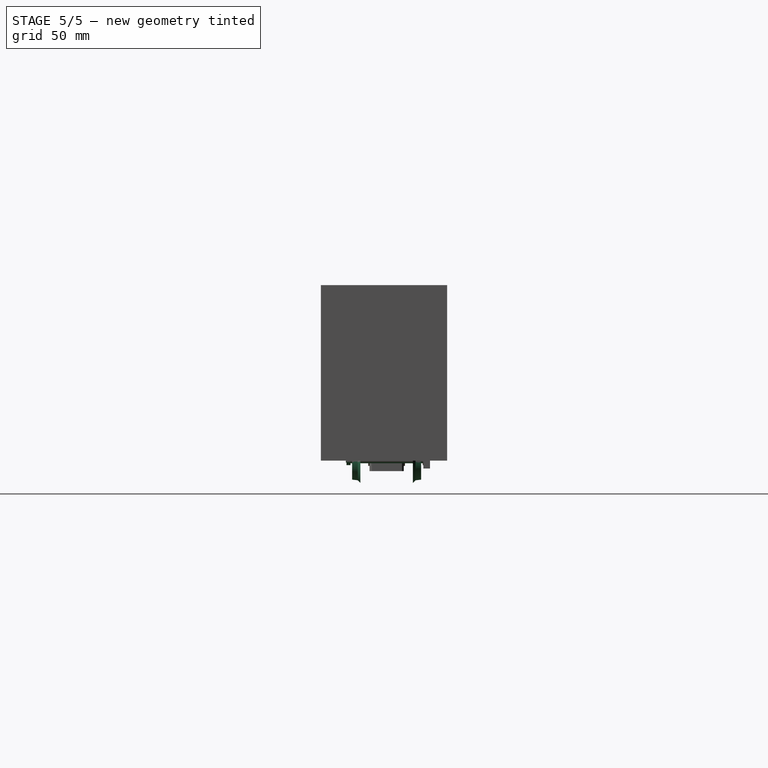
[diagram: stage 5 of 5 — right view after this stage's code; geometry added in this stage tinted green]
FEATURE [Part::Cylinder] Cylinder016
  Angle = 360
  AttacherType = Attacher::AttachEngine3D
  FirstAngle = 0
  Height = 10
  Placement = pos=(0,8,0) rot=(1,0,0;1.5708rad)
  Radius = 2
  SecondAngle = 0
FEATURE [Part::Cylinder] Cylinder017
  Angle = 360
  AttacherType = Attacher::AttachEngine3D
  FirstAngle = 0
  Height = 10
  Placement = pos=(0,8,0) rot=(1,0,0;1.5708rad)
  Radius = 2
  SecondAngle = 0
FEATURE [Part::Cylinder] Cylinder020
  Angle = 360
  AttacherType = Attacher::AttachEngine3D
  FirstAngle = 0
  Height = 55
  Placement = pos=(0,7.5,0) rot=(1,0,0;1.5708rad)
  Radius = 2
  SecondAngle = 0
FEATURE [Part::Cylinder] Cylinder021
  Angle = 360
  AttacherType = Attacher::AttachEngine3D
  FirstAngle = 0
  Height = 62
  Placement = pos=(0,11,0) rot=(1,0,0;1.5708rad)
  Radius = 1.5
  SecondAngle = 0
FEATURE [Sketcher::SketchObject] Sketch005
  FullyConstrained = true
  sketch-geometry (9):
    g0: LineSegment StartX=0 StartY=0 StartZ=0 EndX=17 EndY=0 EndZ=0
    g1: LineSegment StartX=17 StartY=0 StartZ=0 EndX=15 EndY=2 EndZ=0
    g2: LineSegment StartX=15 StartY=2 StartZ=0 EndX=14.5 EndY=6.2 EndZ=0
    g3: LineSegment StartX=14.5 StartY=6.2 StartZ=0 EndX=12.8 EndY=6.2 EndZ=0
    g4: LineSegment StartX=12.8 StartY=6.2 StartZ=0 EndX=12.5 EndY=5.25 EndZ=0
    g5: LineSegment StartX=12.5 StartY=5.25 StartZ=0 EndX=6.5 EndY=5.25 EndZ=0
    g6: LineSegment StartX=6.5 StartY=5.25 StartZ=0 EndX=4.5 EndY=5.5 EndZ=0
    g7: LineSegment StartX=4.5 StartY=5.5 StartZ=0 EndX=0 EndY=5.5 EndZ=0
    g8: LineSegment StartX=0 StartY=5.5 StartZ=0 EndX=0 EndY=0 EndZ=0
  constraints (26):
    c: Coincident(g-1,g0)
    c: PointOnObject(g0,g-1)
    c: Coincident(g0,g1)
    c: Coincident(g1,g2)
    c: Coincident(g2,g3)
    c: Horizontal(g3)
    c: Coincident(g3,g4)
    c: Coincident(g4,g5)
    c: Horizontal(g5)
    c: Coincident(g5,g6)
    c: Coincident(g6,g7)
    c: PointOnObject(g7,g-2)
    c: Horizontal(g7)
    c: Coincident(g7,g8)
    c: Coincident(g8,g0)
    c: DistanceX(g0,g0) = 17
    c: DistanceX(g0,g1) = 15
    c: DistanceY(g0,g1) = 2
    c: DistanceY(g0,g2) = 6.2
    c: DistanceX(g3,g2) = 1.7
    c: DistanceX(g0,g2) = 14.5
    c: DistanceY(g0,g7) = 5.5
    c: DistanceY(g0,g5) = 5.25
    c: DistanceX(g0,g4) = 12.5
    c: DistanceX(g7,g6) = 4.5
    c: DistanceX(g6,g5) = 2
FEATURE [Part::Revolution] Revolve001
  Angle = 360
  Axis = (0,-1,0)
  AxisLink = -> Sketch005 [Edge9]
  Base = (0,0,0)
  FaceMakerClass = Part::FaceMakerBullseye
  Solid = true
  Source = -> Sketch005
  Symmetric = false
FEATURE [Part::Cut] Cut010  label="Rad-A"
  Base = -> Revolve001
  Tool = -> Cylinder016
FEATURE [Part::Revolution] Revolve002
  Angle = 360
  Axis = (0,-1,0)
  AxisLink = -> Sketch005 [Edge9]
  Base = (0,0,0)
  FaceMakerClass = Part::FaceMakerBullseye
  Solid = true
  Source = -> Sketch005
  Symmetric = false
FEATURE [Part::Cut] Cut011  label="Rad-B"
  Base = -> Revolve002
  Placement = pos=(0,-40,0) rot=(0,0,1;3.14159rad)
  Tool = -> Cylinder017
FEATURE [Part::Cylinder] Cylinder035  label="Welle001"
  Angle = 360
  AttacherType = Attacher::AttachEngine3D
  FirstAngle = 0
  Height = 43
  Placement = pos=(-15,-45,11) rot=(0.707107,0,0.707107;3.14159rad)
  Radius = 2
  SecondAngle = 0
FEATURE [Part::Cylinder] Cylinder037  label="Welle002"
  Angle = 360
  AttacherType = Attacher::AttachEngine3D
  FirstAngle = 0
  Height = 47
  Placement = pos=(46,-20,12) rot=(0,1,0;1.5708rad)
  Radius = 2
  SecondAngle = 0
FEATURE [Part::FeaturePython] WormGear  # WARN: FeaturePython — macro-defined, semantics opaque (R4)
  AttacherType = Attacher::AttachEngine3D
  Placement = pos=(7.5,-45,11) rot=(0,-1,0;1.5708rad)
  beta = 3.17983
  clearance = 0.25
  diameter = 9
  head = 0
  height = 16
  module = 0.5
  pressure_angle = 20
  reverse_pitch = false
  teeth = 1
  version = 1.2.0
FEATURE [Part::FeaturePython] CycloidGear  # WARN: FeaturePython — macro-defined, semantics opaque (R4)
  AttacherType = Attacher::AttachEngine3D
  Placement = pos=(0,-42.5,-6e-15) rot=(0.57735,-0.57735,0.57735;2.0944rad)
  angular_backlash = 0
  backlash = 0
  beta = 0
  clearance = 0.25
  double_helix = false
  dw = 15
  head = 0
  head_fillet = 0
  height = 5
  inner_diameter = 15
  module = 0.5
  numpoints = 20
  outer_diameter = 7.5
  root_fillet = 0
  teeth = 30
  version = 1.2.0
  expr: angular_backlash = backlash / dw * 360 ° / pi
  expr: dw = teeth * module
  expr: inner_diameter = teeth / 2
FEATURE [Part::FeaturePython] Tube002  label="4mmLager1"  # WARN: FeaturePython — macro-defined, semantics opaque (R4)
  AttacherType = Attacher::AttachEngine3D
  Height = 2.5
  InnerRadius = 2
  OuterRadius = 3.5
  Placement = pos=(-11,-45,11) rot=(0,-1,0;1.5708rad)
FEATURE [Part::FeaturePython] Tube003  label="4mmLager2"  # WARN: FeaturePython — macro-defined, semantics opaque (R4)
  AttacherType = Attacher::AttachEngine3D
  Height = 2.5
  InnerRadius = 2
  OuterRadius = 3.5
  Placement = pos=(16,-45,11) rot=(0,-1,0;1.5708rad)
FEATURE [Part::FeaturePython] Tube004  label="4mmLager3"  # WARN: FeaturePython — macro-defined, semantics opaque (R4)
  AttacherType = Attacher::AttachEngine3D
  Height = 2.5
  InnerRadius = 2
  OuterRadius = 3.5
  Placement = pos=(-4e-15,-32.5,0) rot=(0.57735,-0.57735,0.57735;2.0944rad)
FEATURE [Part::FeaturePython] Tube005  label="4mmLager4"  # WARN: FeaturePython — macro-defined, semantics opaque (R4)
  AttacherType = Attacher::AttachEngine3D
  Height = 2.5
  InnerRadius = 2
  OuterRadius = 3.5
  Placement = pos=(-4e-15,-56,0) rot=(0.57735,-0.57735,0.57735;2.0944rad)
FEATURE [Part::MultiFuse] Fusion031  label="Achse-A"
  Shapes = -> [Cylinder021,Cylinder020]
FEATURE [Part::Cylinder] Cylinder109
  Angle = 360
  AttacherType = Attacher::AttachEngine3D
  FirstAngle = 0
  Height = 4.5
  Placement = pos=(12,-45,11) rot=(0,-1,0;1.5708rad)
  Radius = 5
  SecondAngle = 0
FEATURE [Part::MultiFuse] Fusion055
  Shapes = -> [WormGear,Cylinder109]
FEATURE [Part::Cylinder] Cylinder110  label="Welle003"
  Angle = 360
  AttacherType = Attacher::AttachEngine3D
  FirstAngle = 0
  Height = 43
  Placement = pos=(-15,-45,11) rot=(0.707107,0,0.707107;3.14159rad)
  Radius = 2
  SecondAngle = 0
FEATURE [Part::Cut] Cut053
  Base = -> Fusion055
  Tool = -> Cylinder110
FEATURE [Part::Cylinder] Cylinder111
  Angle = 360
  AttacherType = Attacher::AttachEngine3D
  FirstAngle = 0
  Height = 5.5
  Placement = pos=(0,-37,-9e-15) rot=(1,0,0;1.5708rad)
  Radius = 5
  SecondAngle = 0
FEATURE [Part::MultiFuse] Fusion056
  Shapes = -> [Cylinder111,CycloidGear]
FEATURE [Part::Cylinder] Cylinder112
  Angle = 360
  AttacherType = Attacher::AttachEngine3D
  FirstAngle = 0
  Height = 10.5
  Placement = pos=(0,-37,-1e-14) rot=(1,0,0;1.5708rad)
  Radius = 2
  SecondAngle = 0
FEATURE [Part::Cut] Cut054
  Base = -> Fusion056
  Placement = pos=(0,-0.5,0) rot=(0,0,1;0rad)
  Tool = -> Cylinder112
FEATURE [Part::MultiFuse] Fusion067  label="Schnecke"
  Placement = pos=(0,25,1) rot=(0,0,1;0rad)
  Shapes = -> [Tube002,Tube003,Cylinder035,Cut053]
FEATURE [Part::MultiFuse] Fusion068  label="Schn-Rad"
  Placement = pos=(0,25.5,0) rot=(0,0,1;0rad)
  Shapes = -> [Tube004,Tube005,Cut054]
FEATURE [Part::FeaturePython] Tube008  label="KuLa-A"  # WARN: FeaturePython — macro-defined, semantics opaque (R4)
  AttacherType = Attacher::AttachEngine3D
  Height = 3
  InnerRadius = 1.5
  OuterRadius = 3.5
  Placement = pos=(0,7.5,0) rot=(-1,0,0;1.5708rad)
FEATURE [Part::FeaturePython] Tube009  label="KuLa-B"  # WARN: FeaturePython — macro-defined, semantics opaque (R4)
  AttacherType = Attacher::AttachEngine3D
  Height = 3
  InnerRadius = 1.5
  OuterRadius = 3.5
  Placement = pos=(0,-50.5,0) rot=(-1,0,0;1.5708rad)
FEATURE [Part::FeaturePython] Tube010  label="KuLa-C"  # WARN: FeaturePython — macro-defined, semantics opaque (R4)
  AttacherType = Attacher::AttachEngine3D
  Height = 3
  InnerRadius = 1.5
  OuterRadius = 3.5
  Placement = pos=(75,7.5,0) rot=(-1,0,0;1.5708rad)
FEATURE [Part::FeaturePython] Tube011  label="KuLa-D"  # WARN: FeaturePython — macro-defined, semantics opaque (R4)
  AttacherType = Attacher::AttachEngine3D
  Height = 3
  InnerRadius = 1.5
  OuterRadius = 3.5
  Placement = pos=(75,-50.5,0) rot=(-1,0,0;1.5708rad)
FEATURE [Part::Cylinder] Cylinder116
  Angle = 360
  AttacherType = Attacher::AttachEngine3D
  FirstAngle = 0
  Height = 55
  Placement = pos=(0,7.5,0) rot=(1,0,0;1.5708rad)
  Radius = 2
  SecondAngle = 0
FEATURE [Part::Cylinder] Cylinder117
  Angle = 360
  AttacherType = Attacher::AttachEngine3D
  FirstAngle = 0
  Height = 62
  Placement = pos=(0,11,0) rot=(1,0,0;1.5708rad)
  Radius = 1.5
  SecondAngle = 0
FEATURE [Part::MultiFuse] Fusion077  label="Achse-B"
  Placement = pos=(75,0,0) rot=(0,0,1;0rad)
  Shapes = -> [Cylinder117,Cylinder116]
FEATURE [Part::Cylinder] Cylinder118
  Angle = 360
  AttacherType = Attacher::AttachEngine3D
  FirstAngle = 0
  Height = 10
  Placement = pos=(0,8,0) rot=(1,0,0;1.5708rad)
  Radius = 2
  SecondAngle = 0
FEATURE [Part::Revolution] Revolve005
  Angle = 360
  Axis = (0,-1,0)
  AxisLink = -> Sketch005 [Edge9]
  Base = (0,0,0)
  FaceMakerClass = Part::FaceMakerBullseye
  Solid = true
  Source = -> Sketch005
  Symmetric = false
FEATURE [Part::Cut] Cut063  label="Rad-D"
  Base = -> Revolve005
  Placement = pos=(75,-40,0) rot=(0,0,1;3.14159rad)
  Tool = -> Cylinder118
FEATURE [Part::Cut] Cut064  label="Rad-C"
  Base = -> Revolve006
  Placement = pos=(75,0,0) rot=(0,0,1;0rad)
  Tool = -> Cylinder119
FEATURE [Part::MultiFuse] Fusion078  label="Radsatz-A"
  Shapes = -> [Cut010,Cut011,Fusion031,Tube008,Tube009]
FEATURE [Part::MultiFuse] Fusion079  label="Radsatz-B"
  Shapes = -> [Cut064,Cut063,Fusion077,Tube011,Tube010]
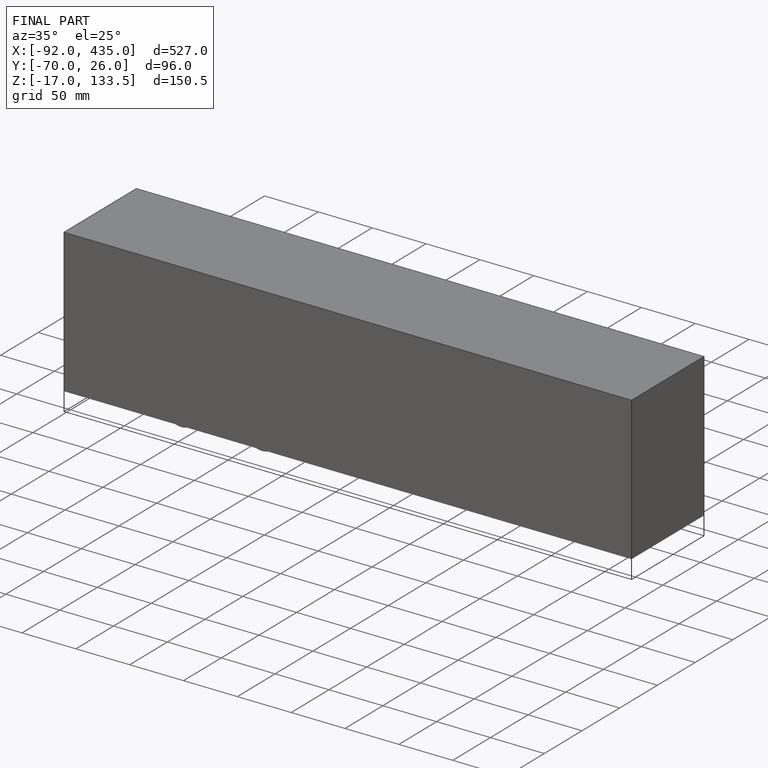
[diagram: finished part — iso view with bounding-box wireframe]
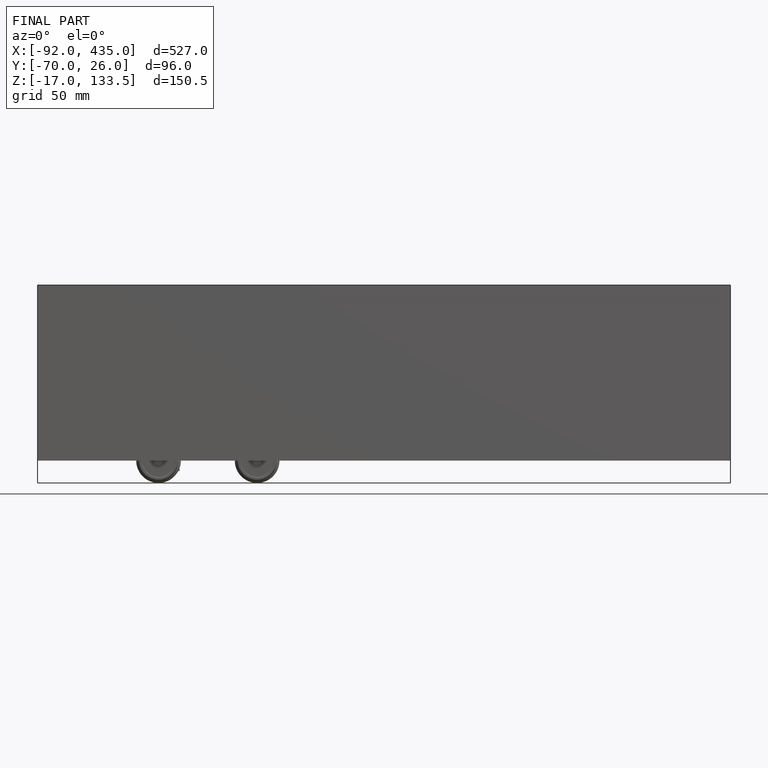
[diagram: finished part — front view with bounding-box wireframe]
